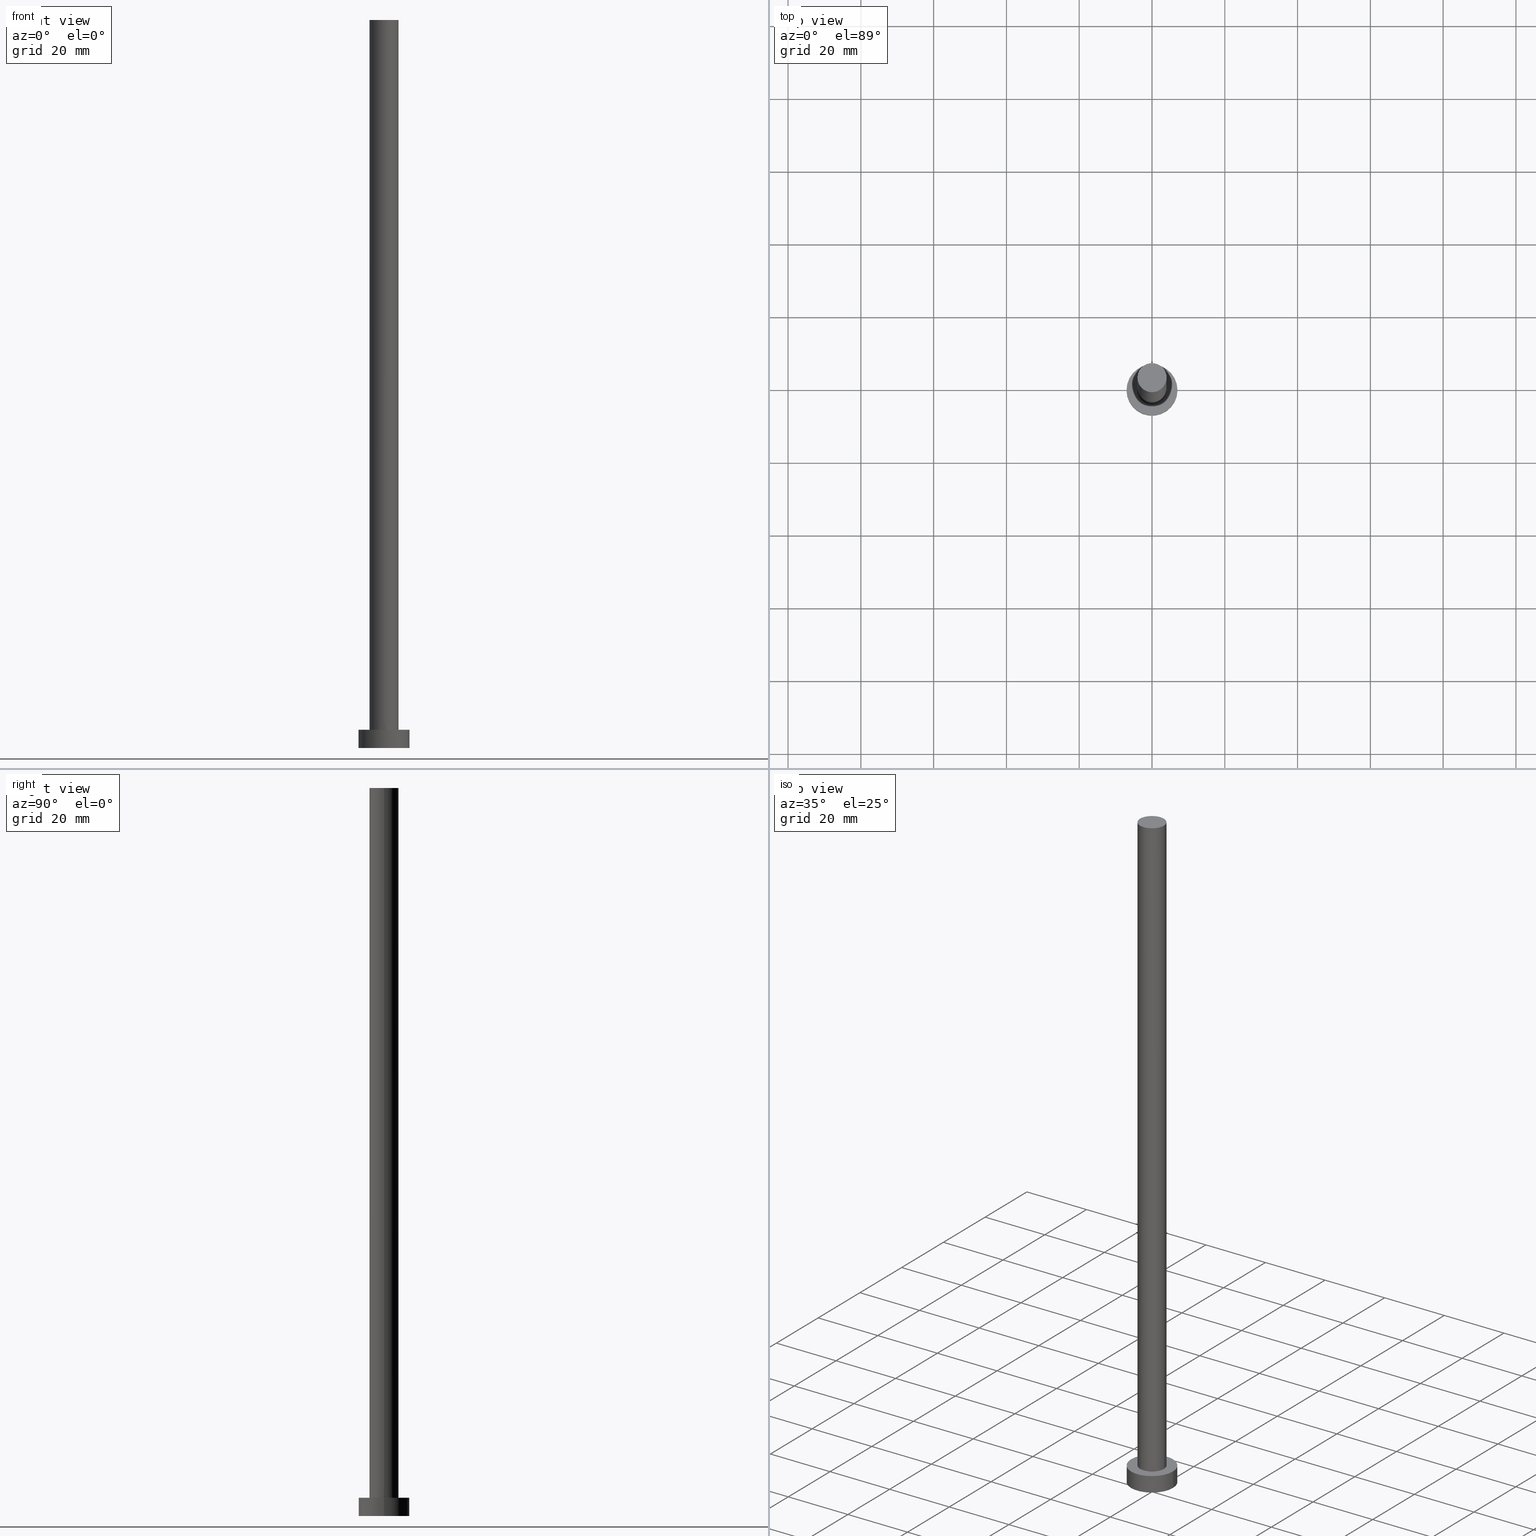
[diagram: canonical four-view strip — front | top / right | iso, engineering-drawing reading convention]
A machine part, canonical four-view strip (front | top / right | iso — engineering-drawing reading convention). The complete STEP part file that produces these views, byte-faithful:
ISO-10303-21;
HEADER;
FILE_DESCRIPTION (( 'STEP AP203' ),
    '1' );
FILE_NAME ('4136.STEP',
    '2023-02-13T11:44:57',
    ( '' ),
    ( '' ),
    'SwSTEP 2.0',
    'SolidWorks 2019',
    '' );
FILE_SCHEMA (( 'CONFIG_CONTROL_DESIGN' ));
ENDSEC;

DATA;
#1 = CIRCLE ( 'NONE', #254, 4.000000000000000000 ) ;
#2 = DATE_AND_TIME ( #215, #234 ) ;
#3 = AXIS2_PLACEMENT_3D ( 'NONE', #228, #226, #8 ) ;
#4 = DATE_TIME_ROLE ( 'classification_date' ) ;
#5 = ORIENTED_EDGE ( 'NONE', *, *, #61, .T. ) ;
#6 = EDGE_CURVE ( 'NONE', #67, #124, #243, .T. ) ;
#7 = ORIENTED_EDGE ( 'NONE', *, *, #6, .F. ) ;
#8 = DIRECTION ( 'NONE',  ( 1.000000000000000000, 0.000000000000000000, 0.000000000000000000 ) ) ;
#9 = AXIS2_PLACEMENT_3D ( 'NONE', #112, #13, #94 ) ;
#10 = CYLINDRICAL_SURFACE ( 'NONE', #245, 7.000000000000000000 ) ;
#11 = AXIS2_PLACEMENT_3D ( 'NONE', #227, #208, #89 ) ;
#12 = DIRECTION ( 'NONE',  ( 0.000000000000000000, 0.000000000000000000, 1.000000000000000000 ) ) ;
#13 = DIRECTION ( 'NONE',  ( -0.000000000000000000, -0.000000000000000000, -1.000000000000000000 ) ) ;
#14 = SECURITY_CLASSIFICATION ( '', '', #24 ) ;
#15 = CARTESIAN_POINT ( 'NONE',  ( 0.000000000000000000, 0.000000000000000000, 5.000000000000000000 ) ) ;
#16 =( LENGTH_UNIT ( ) NAMED_UNIT ( * ) SI_UNIT ( .MILLI., .METRE. ) );
#17 = PLANE ( 'NONE',  #213 ) ;
#18 = CC_DESIGN_APPROVAL ( #150, ( #238 ) ) ;
#19 = DIRECTION ( 'NONE',  ( 1.000000000000000000, 0.000000000000000000, 0.000000000000000000 ) ) ;
#20 = APPROVAL_STATUS ( 'not_yet_approved' ) ;
#21 = CARTESIAN_POINT ( 'NONE',  ( 0.000000000000000000, 0.000000000000000000, 5.000000000000000000 ) ) ;
#22 = COORDINATED_UNIVERSAL_TIME_OFFSET ( 1, 0, .AHEAD. ) ;
#23 = ORIENTED_EDGE ( 'NONE', *, *, #115, .T. ) ;
#24 = SECURITY_CLASSIFICATION_LEVEL ( 'unclassified' ) ;
#25 = APPROVAL ( #217, 'NEUR�EN�' ) ;
#26 = VERTEX_POINT ( 'NONE', #137 ) ;
#27 = ORIENTED_EDGE ( 'NONE', *, *, #40, .T. ) ;
#28 = VERTEX_POINT ( 'NONE', #153 ) ;
#29 = EDGE_CURVE ( 'NONE', #164, #28, #1, .T. ) ;
#30 = DIRECTION ( 'NONE',  ( 0.000000000000000000, 0.000000000000000000, 1.000000000000000000 ) ) ;
#31 = DIRECTION ( 'NONE',  ( 1.000000000000000000, 0.000000000000000000, 0.000000000000000000 ) ) ;
#32 = DIRECTION ( 'NONE',  ( -1.000000000000000000, 0.000000000000000000, 0.000000000000000000 ) ) ;
#33 = CARTESIAN_POINT ( 'NONE',  ( -7.000000000000000000, 0.000000000000000000, 5.000000000000000000 ) ) ;
#34 = CARTESIAN_POINT ( 'NONE',  ( 0.000000000000000000, 0.000000000000000000, 5.000000000000000000 ) ) ;
#35 = CARTESIAN_POINT ( 'NONE',  ( 0.000000000000000000, 0.000000000000000000, 200.0000000000000000 ) ) ;
#36 = PERSON_AND_ORGANIZATION_ROLE ( 'creator' ) ;
#37 = CLOSED_SHELL ( 'NONE', ( #91, #157, #192, #251, #71, #185, #222 ) ) ;
#38 = PLANE ( 'NONE',  #103 ) ;
#39 = VECTOR ( 'NONE', #136, 1000.000000000000000 ) ;
#40 = EDGE_CURVE ( 'NONE', #67, #221, #201, .T. ) ;
#41 = ORIENTED_EDGE ( 'NONE', *, *, #44, .T. ) ;
#42 = PRODUCT_DEFINITION_FORMATION_WITH_SPECIFIED_SOURCE ( 'LIBOVOLN�', '', #65, .NOT_KNOWN. ) ;
#43 = LOCAL_TIME ( 12, 44, 57.00000000000000000, #22 ) ;
#44 = EDGE_CURVE ( 'NONE', #124, #26, #125, .T. ) ;
#45 = EDGE_LOOP ( 'NONE', ( #27, #23 ) ) ;
#46 = APPROVAL_PERSON_ORGANIZATION ( #59, #182, #62 ) ;
#47 = CC_DESIGN_PERSON_AND_ORGANIZATION_ASSIGNMENT ( #127, #108, ( #14 ) ) ;
#48 = DIRECTION ( 'NONE',  ( 0.000000000000000000, 0.000000000000000000, 1.000000000000000000 ) ) ;
#49 = FACE_OUTER_BOUND ( 'NONE', #168, .T. ) ;
#50 = DIRECTION ( 'NONE',  ( 1.000000000000000000, 0.000000000000000000, 0.000000000000000000 ) ) ;
#51 = DIRECTION ( 'NONE',  ( 1.000000000000000000, 0.000000000000000000, 0.000000000000000000 ) ) ;
#52 = DIRECTION ( 'NONE',  ( -1.000000000000000000, 0.000000000000000000, 0.000000000000000000 ) ) ;
#53 = PERSON_AND_ORGANIZATION ( #209, #198 ) ;
#54 = COORDINATED_UNIVERSAL_TIME_OFFSET ( 1, 0, .AHEAD. ) ;
#55 = UNCERTAINTY_MEASURE_WITH_UNIT (LENGTH_MEASURE( 1.000000000000000082E-05 ), #16, 'distance_accuracy_value', 'NONE');
#56 = DIRECTION ( 'NONE',  ( 0.000000000000000000, 0.000000000000000000, 1.000000000000000000 ) ) ;
#57 = CIRCLE ( 'NONE', #92, 7.000000000000000000 ) ;
#58 = MANIFOLD_SOLID_BREP ( 'P�idat vysunut�m3', #37 ) ;
#59 = PERSON_AND_ORGANIZATION ( #209, #198 ) ;
#60 = EDGE_LOOP ( 'NONE', ( #123, #184 ) ) ;
#61 = EDGE_CURVE ( 'NONE', #26, #124, #57, .T. ) ;
#62 = APPROVAL_ROLE ( '' ) ;
#63 = EDGE_LOOP ( 'NONE', ( #183, #167, #5, #7 ) ) ;
#64 = APPLICATION_CONTEXT ( 'configuration controlled 3d designs of mechanical parts and assemblies' ) ;
#65 = PRODUCT ( '4136', '4136', '', ( #75 ) ) ;
#66 = CC_DESIGN_PERSON_AND_ORGANIZATION_ASSIGNMENT ( #97, #161, ( #238 ) ) ;
#67 = VERTEX_POINT ( 'NONE', #33 ) ;
#68 = CARTESIAN_POINT ( 'NONE',  ( 0.000000000000000000, 0.000000000000000000, 0.000000000000000000 ) ) ;
#69 = CARTESIAN_POINT ( 'NONE',  ( 0.000000000000000000, 0.000000000000000000, 5.000000000000000000 ) ) ;
#70 = CYLINDRICAL_SURFACE ( 'NONE', #120, 7.000000000000000000 ) ;
#71 = ADVANCED_FACE ( 'NONE', ( #250 ), #114, .F. ) ;
#72 = CARTESIAN_POINT ( 'NONE',  ( -4.000000000000000000, 0.000000000000000000, 200.0000000000000000 ) ) ;
#73 = CARTESIAN_POINT ( 'NONE',  ( 4.000000000000000000, 4.898587196589412829E-16, 200.0000000000000000 ) ) ;
#74 = CARTESIAN_POINT ( 'NONE',  ( 0.000000000000000000, 0.000000000000000000, 0.000000000000000000 ) ) ;
#75 = MECHANICAL_CONTEXT ( 'NONE', #132, 'mechanical' ) ;
#76 = CC_DESIGN_APPROVAL ( #25, ( #42 ) ) ;
#77 =( NAMED_UNIT ( * ) PLANE_ANGLE_UNIT ( ) SI_UNIT ( $, .RADIAN. ) );
#78 = PERSON_AND_ORGANIZATION_ROLE ( 'design_owner' ) ;
#79 = DATE_TIME_ROLE ( 'creation_date' ) ;
#80 = DATE_AND_TIME ( #84, #162 ) ;
#81 = DATE_AND_TIME ( #102, #43 ) ;
#82 = EDGE_CURVE ( 'NONE', #128, #28, #95, .T. ) ;
#83 = ORIENTED_EDGE ( 'NONE', *, *, #40, .F. ) ;
#84 = CALENDAR_DATE ( 2023, 13, 2 ) ;
#85 = ORIENTED_EDGE ( 'NONE', *, *, #144, .F. ) ;
#86 = EDGE_CURVE ( 'NONE', #202, #128, #145, .T. ) ;
#87 = CIRCLE ( 'NONE', #219, 7.000000000000000000 ) ;
#88 = ORIENTED_EDGE ( 'NONE', *, *, #86, .T. ) ;
#89 = DIRECTION ( 'NONE',  ( 1.000000000000000000, 0.000000000000000000, -0.000000000000000000 ) ) ;
#90 = DIRECTION ( 'NONE',  ( 0.000000000000000000, 0.000000000000000000, 1.000000000000000000 ) ) ;
#91 = ADVANCED_FACE ( 'NONE', ( #113 ), #247, .T. ) ;
#92 = AXIS2_PLACEMENT_3D ( 'NONE', #135, #48, #31 ) ;
#93 = DIRECTION ( 'NONE',  ( 1.000000000000000000, 0.000000000000000000, 0.000000000000000000 ) ) ;
#94 = DIRECTION ( 'NONE',  ( -1.000000000000000000, 0.000000000000000000, 0.000000000000000000 ) ) ;
#95 = LINE ( 'NONE', #174, #158 ) ;
#96 = CIRCLE ( 'NONE', #3, 4.000000000000000000 ) ;
#97 = PERSON_AND_ORGANIZATION ( #209, #198 ) ;
#98 = CC_DESIGN_APPROVAL ( #182, ( #14 ) ) ;
#99 =( NAMED_UNIT ( * ) SI_UNIT ( $, .STERADIAN. ) SOLID_ANGLE_UNIT ( ) );
#100 = APPROVAL_ROLE ( '' ) ;
#101 = AXIS2_PLACEMENT_3D ( 'NONE', #133, #188, #32 ) ;
#102 = CALENDAR_DATE ( 2023, 13, 2 ) ;
#103 = AXIS2_PLACEMENT_3D ( 'NONE', #21, #141, #178 ) ;
#104 = EDGE_LOOP ( 'NONE', ( #148, #83, #223, #41 ) ) ;
#105 = ORIENTED_EDGE ( 'NONE', *, *, #86, .F. ) ;
#106 = ORIENTED_EDGE ( 'NONE', *, *, #255, .F. ) ;
#107 = VECTOR ( 'NONE', #244, 1000.000000000000000 ) ;
#108 = PERSON_AND_ORGANIZATION_ROLE ( 'classification_officer' ) ;
#109 = ORIENTED_EDGE ( 'NONE', *, *, #29, .F. ) ;
#110 = DIRECTION ( 'NONE',  ( -0.000000000000000000, -0.000000000000000000, -1.000000000000000000 ) ) ;
#111 = CC_DESIGN_DATE_AND_TIME_ASSIGNMENT ( #2, #79, ( #238 ) ) ;
#112 = CARTESIAN_POINT ( 'NONE',  ( 0.000000000000000000, 0.000000000000000000, 200.0000000000000000 ) ) ;
#113 = FACE_OUTER_BOUND ( 'NONE', #166, .T. ) ;
#114 = PLANE ( 'NONE',  #11 ) ;
#115 = EDGE_CURVE ( 'NONE', #221, #67, #87, .T. ) ;
#116 = CARTESIAN_POINT ( 'NONE',  ( 0.000000000000000000, 0.000000000000000000, 5.000000000000000000 ) ) ;
#117 = FACE_OUTER_BOUND ( 'NONE', #45, .T. ) ;
#118 = PERSON_AND_ORGANIZATION ( #209, #198 ) ;
#119 = CC_DESIGN_PERSON_AND_ORGANIZATION_ASSIGNMENT ( #121, #78, ( #65 ) ) ;
#120 = AXIS2_PLACEMENT_3D ( 'NONE', #15, #110, #252 ) ;
#121 = PERSON_AND_ORGANIZATION ( #209, #198 ) ;
#122 = PERSON_AND_ORGANIZATION ( #209, #198 ) ;
#123 = ORIENTED_EDGE ( 'NONE', *, *, #44, .F. ) ;
#124 = VERTEX_POINT ( 'NONE', #173 ) ;
#125 = CIRCLE ( 'NONE', #172, 7.000000000000000000 ) ;
#126 = EDGE_LOOP ( 'NONE', ( #225, #88 ) ) ;
#127 = PERSON_AND_ORGANIZATION ( #209, #198 ) ;
#128 = VERTEX_POINT ( 'NONE', #72 ) ;
#129 = APPROVAL_PERSON_ORGANIZATION ( #122, #150, #100 ) ;
#130 = ORIENTED_EDGE ( 'NONE', *, *, #147, .F. ) ;
#131 = CARTESIAN_POINT ( 'NONE',  ( 7.000000000000000000, 8.572527594031473190E-16, 5.000000000000000000 ) ) ;
#132 = APPLICATION_CONTEXT ( 'configuration controlled 3d designs of mechanical parts and assemblies' ) ;
#133 = CARTESIAN_POINT ( 'NONE',  ( 0.000000000000000000, 0.000000000000000000, 200.0000000000000000 ) ) ;
#134 = AXIS2_PLACEMENT_3D ( 'NONE', #74, #140, #19 ) ;
#135 = CARTESIAN_POINT ( 'NONE',  ( 0.000000000000000000, 0.000000000000000000, 0.000000000000000000 ) ) ;
#136 = DIRECTION ( 'NONE',  ( -0.000000000000000000, -0.000000000000000000, -1.000000000000000000 ) ) ;
#137 = CARTESIAN_POINT ( 'NONE',  ( 7.000000000000000000, 8.572527594031473190E-16, 0.000000000000000000 ) ) ;
#138 = DIRECTION ( 'NONE',  ( 0.000000000000000000, 0.000000000000000000, 1.000000000000000000 ) ) ;
#139 = AXIS2_PLACEMENT_3D ( 'NONE', #216, #138, #176 ) ;
#140 = DIRECTION ( 'NONE',  ( 0.000000000000000000, 0.000000000000000000, 1.000000000000000000 ) ) ;
#141 = DIRECTION ( 'NONE',  ( 0.000000000000000000, 0.000000000000000000, 1.000000000000000000 ) ) ;
#142 = APPLICATION_PROTOCOL_DEFINITION ( 'international standard', 'config_control_design', 1994, #132 ) ;
#143 = CC_DESIGN_SECURITY_CLASSIFICATION ( #14, ( #42 ) ) ;
#144 = EDGE_CURVE ( 'NONE', #128, #202, #96, .T. ) ;
#145 = CIRCLE ( 'NONE', #218, 4.000000000000000000 ) ;
#146 = ORIENTED_EDGE ( 'NONE', *, *, #82, .F. ) ;
#147 = EDGE_CURVE ( 'NONE', #202, #164, #249, .T. ) ;
#148 = ORIENTED_EDGE ( 'NONE', *, *, #203, .F. ) ;
#149 = CARTESIAN_POINT ( 'NONE',  ( 0.000000000000000000, 0.000000000000000000, 200.0000000000000000 ) ) ;
#150 = APPROVAL ( #20, 'NEUR�EN�' ) ;
#151 = CARTESIAN_POINT ( 'NONE',  ( 4.000000000000000000, 4.898587196589412829E-16, 5.000000000000000000 ) ) ;
#152 = LINE ( 'NONE', #154, #107 ) ;
#153 = CARTESIAN_POINT ( 'NONE',  ( -4.000000000000000000, 0.000000000000000000, 5.000000000000000000 ) ) ;
#154 = CARTESIAN_POINT ( 'NONE',  ( 7.000000000000000000, 8.572527594031473190E-16, 5.000000000000000000 ) ) ;
#155 = DATE_AND_TIME ( #253, #187 ) ;
#156 = COORDINATED_UNIVERSAL_TIME_OFFSET ( 1, 0, .AHEAD. ) ;
#157 = ADVANCED_FACE ( 'NONE', ( #171 ), #10, .T. ) ;
#158 = VECTOR ( 'NONE', #211, 1000.000000000000000 ) ;
#159 = APPLICATION_PROTOCOL_DEFINITION ( 'international standard', 'config_control_design', 1994, #64 ) ;
#160 = PRODUCT_RELATED_PRODUCT_CATEGORY ( 'detail', '', ( #65 ) ) ;
#161 = PERSON_AND_ORGANIZATION_ROLE ( 'creator' ) ;
#162 = LOCAL_TIME ( 12, 44, 57.00000000000000000, #165 ) ;
#163 = ORIENTED_EDGE ( 'NONE', *, *, #82, .T. ) ;
#164 = VERTEX_POINT ( 'NONE', #151 ) ;
#165 = COORDINATED_UNIVERSAL_TIME_OFFSET ( 1, 0, .AHEAD. ) ;
#166 = EDGE_LOOP ( 'NONE', ( #105, #200, #199, #146 ) ) ;
#167 = ORIENTED_EDGE ( 'NONE', *, *, #203, .T. ) ;
#168 = EDGE_LOOP ( 'NONE', ( #130, #85, #163, #204 ) ) ;
#169 =( GEOMETRIC_REPRESENTATION_CONTEXT ( 3 ) GLOBAL_UNCERTAINTY_ASSIGNED_CONTEXT ( ( #55 ) ) GLOBAL_UNIT_ASSIGNED_CONTEXT ( ( #16, #77, #99 ) ) REPRESENTATION_CONTEXT ( 'NONE', 'WORKASPACE' ) );
#170 = DIRECTION ( 'NONE',  ( 1.000000000000000000, 0.000000000000000000, 0.000000000000000000 ) ) ;
#171 = FACE_OUTER_BOUND ( 'NONE', #63, .T. ) ;
#172 = AXIS2_PLACEMENT_3D ( 'NONE', #68, #12, #231 ) ;
#173 = CARTESIAN_POINT ( 'NONE',  ( -7.000000000000000000, 0.000000000000000000, 0.000000000000000000 ) ) ;
#174 = CARTESIAN_POINT ( 'NONE',  ( -4.000000000000000000, 0.000000000000000000, 200.0000000000000000 ) ) ;
#175 = COORDINATED_UNIVERSAL_TIME_OFFSET ( 1, 0, .AHEAD. ) ;
#176 = DIRECTION ( 'NONE',  ( 1.000000000000000000, 0.000000000000000000, 0.000000000000000000 ) ) ;
#177 = CC_DESIGN_DATE_AND_TIME_ASSIGNMENT ( #80, #4, ( #14 ) ) ;
#178 = DIRECTION ( 'NONE',  ( 1.000000000000000000, 0.000000000000000000, -0.000000000000000000 ) ) ;
#179 = DATE_AND_TIME ( #214, #240 ) ;
#180 = PRODUCT_DEFINITION_SHAPE ( 'NONE', 'NONE',  #238 ) ;
#181 = EDGE_LOOP ( 'NONE', ( #106, #109 ) ) ;
#182 = APPROVAL ( #224, 'NEUR�EN�' ) ;
#183 = ORIENTED_EDGE ( 'NONE', *, *, #115, .F. ) ;
#184 = ORIENTED_EDGE ( 'NONE', *, *, #61, .F. ) ;
#185 = ADVANCED_FACE ( 'NONE', ( #49 ), #190, .T. ) ;
#186 = CARTESIAN_POINT ( 'NONE',  ( 0.000000000000000000, 0.000000000000000000, 5.000000000000000000 ) ) ;
#187 = LOCAL_TIME ( 12, 44, 57.00000000000000000, #175 ) ;
#188 = DIRECTION ( 'NONE',  ( -0.000000000000000000, -0.000000000000000000, -1.000000000000000000 ) ) ;
#189 = DIRECTION ( 'NONE',  ( 0.000000000000000000, 0.000000000000000000, 1.000000000000000000 ) ) ;
#190 = CYLINDRICAL_SURFACE ( 'NONE', #9, 4.000000000000000000 ) ;
#191 = FACE_OUTER_BOUND ( 'NONE', #104, .T. ) ;
#192 = ADVANCED_FACE ( 'NONE', ( #191 ), #70, .T. ) ;
#193 = DIRECTION ( 'NONE',  ( 1.000000000000000000, 0.000000000000000000, -0.000000000000000000 ) ) ;
#194 = PERSON_AND_ORGANIZATION_ROLE ( 'design_supplier' ) ;
#195 = FACE_BOUND ( 'NONE', #181, .T. ) ;
#196 = AXIS2_PLACEMENT_3D ( 'NONE', #186, #90, #170 ) ;
#197 = APPROVAL_ROLE ( '' ) ;
#198 = ORGANIZATION ( 'NEUR�EN�', 'NEUR�EN�', '' ) ;
#199 = ORIENTED_EDGE ( 'NONE', *, *, #29, .T. ) ;
#200 = ORIENTED_EDGE ( 'NONE', *, *, #147, .T. ) ;
#201 = CIRCLE ( 'NONE', #196, 7.000000000000000000 ) ;
#202 = VERTEX_POINT ( 'NONE', #73 ) ;
#203 = EDGE_CURVE ( 'NONE', #221, #26, #152, .T. ) ;
#204 = ORIENTED_EDGE ( 'NONE', *, *, #255, .T. ) ;
#205 = FACE_OUTER_BOUND ( 'NONE', #126, .T. ) ;
#206 = DIRECTION ( 'NONE',  ( 0.000000000000000000, 0.000000000000000000, 1.000000000000000000 ) ) ;
#207 = CC_DESIGN_PERSON_AND_ORGANIZATION_ASSIGNMENT ( #118, #194, ( #42 ) ) ;
#208 = DIRECTION ( 'NONE',  ( 0.000000000000000000, 0.000000000000000000, 1.000000000000000000 ) ) ;
#209 = PERSON ( 'NEUR�EN�', 'NEUR�EN�', 'NEUR�EN�', ('NEUR�EN�'), ('NEUR�EN�'), ('NEUR�EN�') ) ;
#210 = DIRECTION ( 'NONE',  ( -0.000000000000000000, -0.000000000000000000, -1.000000000000000000 ) ) ;
#211 = DIRECTION ( 'NONE',  ( -0.000000000000000000, -0.000000000000000000, -1.000000000000000000 ) ) ;
#212 = CIRCLE ( 'NONE', #139, 4.000000000000000000 ) ;
#213 = AXIS2_PLACEMENT_3D ( 'NONE', #35, #56, #193 ) ;
#214 = CALENDAR_DATE ( 2023, 13, 2 ) ;
#215 = CALENDAR_DATE ( 2023, 13, 2 ) ;
#216 = CARTESIAN_POINT ( 'NONE',  ( 0.000000000000000000, 0.000000000000000000, 5.000000000000000000 ) ) ;
#217 = APPROVAL_STATUS ( 'not_yet_approved' ) ;
#218 = AXIS2_PLACEMENT_3D ( 'NONE', #149, #206, #93 ) ;
#219 = AXIS2_PLACEMENT_3D ( 'NONE', #69, #189, #51 ) ;
#220 = APPROVAL_DATE_TIME ( #81, #182 ) ;
#221 = VERTEX_POINT ( 'NONE', #131 ) ;
#222 = ADVANCED_FACE ( 'NONE', ( #205 ), #17, .T. ) ;
#223 = ORIENTED_EDGE ( 'NONE', *, *, #6, .T. ) ;
#224 = APPROVAL_STATUS ( 'not_yet_approved' ) ;
#225 = ORIENTED_EDGE ( 'NONE', *, *, #144, .T. ) ;
#226 = DIRECTION ( 'NONE',  ( 0.000000000000000000, 0.000000000000000000, 1.000000000000000000 ) ) ;
#227 = CARTESIAN_POINT ( 'NONE',  ( 0.000000000000000000, 0.000000000000000000, 0.000000000000000000 ) ) ;
#228 = CARTESIAN_POINT ( 'NONE',  ( 0.000000000000000000, 0.000000000000000000, 200.0000000000000000 ) ) ;
#229 = APPROVAL_PERSON_ORGANIZATION ( #237, #25, #197 ) ;
#230 = CARTESIAN_POINT ( 'NONE',  ( 4.000000000000000000, 4.898587196589412829E-16, 200.0000000000000000 ) ) ;
#231 = DIRECTION ( 'NONE',  ( 1.000000000000000000, 0.000000000000000000, 0.000000000000000000 ) ) ;
#232 = ADVANCED_BREP_SHAPE_REPRESENTATION ( '4136', ( #58, #134 ), #169 ) ;
#233 = APPROVAL_DATE_TIME ( #155, #25 ) ;
#234 = LOCAL_TIME ( 12, 44, 57.00000000000000000, #54 ) ;
#235 = APPROVAL_DATE_TIME ( #179, #150 ) ;
#236 = CC_DESIGN_PERSON_AND_ORGANIZATION_ASSIGNMENT ( #53, #36, ( #42 ) ) ;
#237 = PERSON_AND_ORGANIZATION ( #209, #198 ) ;
#238 = PRODUCT_DEFINITION ( 'NEZN�M�', '', #42, #246 ) ;
#239 = CARTESIAN_POINT ( 'NONE',  ( -7.000000000000000000, 0.000000000000000000, 5.000000000000000000 ) ) ;
#240 = LOCAL_TIME ( 12, 44, 57.00000000000000000, #156 ) ;
#241 = DIRECTION ( 'NONE',  ( -0.000000000000000000, -0.000000000000000000, -1.000000000000000000 ) ) ;
#242 = SHAPE_DEFINITION_REPRESENTATION ( #180, #232 ) ;
#243 = LINE ( 'NONE', #239, #248 ) ;
#244 = DIRECTION ( 'NONE',  ( -0.000000000000000000, -0.000000000000000000, -1.000000000000000000 ) ) ;
#245 = AXIS2_PLACEMENT_3D ( 'NONE', #34, #210, #52 ) ;
#246 = DESIGN_CONTEXT ( 'detailed design', #64, 'design' ) ;
#247 = CYLINDRICAL_SURFACE ( 'NONE', #101, 4.000000000000000000 ) ;
#248 = VECTOR ( 'NONE', #241, 1000.000000000000000 ) ;
#249 = LINE ( 'NONE', #230, #39 ) ;
#250 = FACE_OUTER_BOUND ( 'NONE', #60, .T. ) ;
#251 = ADVANCED_FACE ( 'NONE', ( #195, #117 ), #38, .T. ) ;
#252 = DIRECTION ( 'NONE',  ( -1.000000000000000000, 0.000000000000000000, 0.000000000000000000 ) ) ;
#253 = CALENDAR_DATE ( 2023, 13, 2 ) ;
#254 = AXIS2_PLACEMENT_3D ( 'NONE', #116, #30, #50 ) ;
#255 = EDGE_CURVE ( 'NONE', #28, #164, #212, .T. ) ;
ENDSEC;
END-ISO-10303-21;
